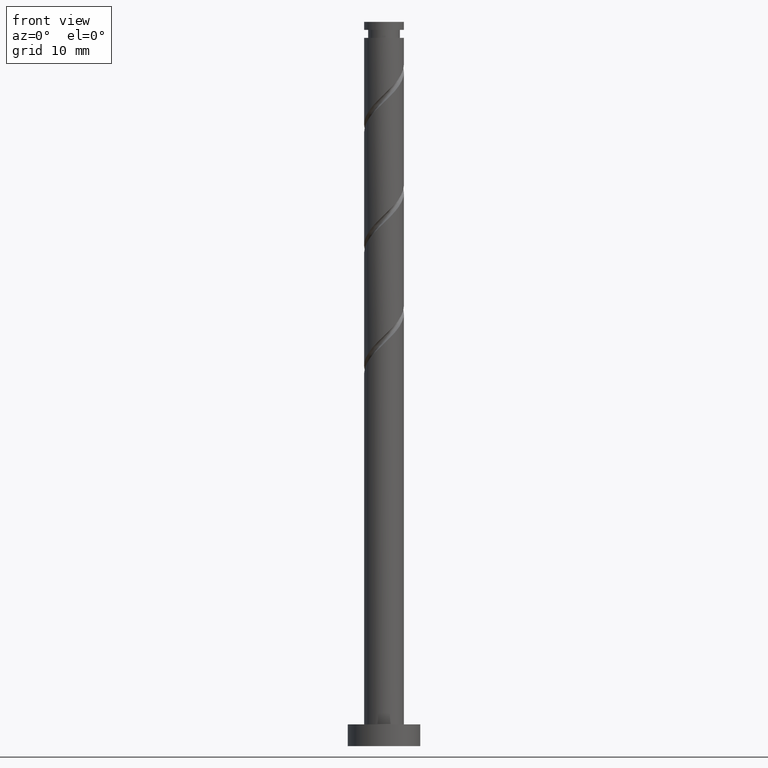
[diagram: clean part render]
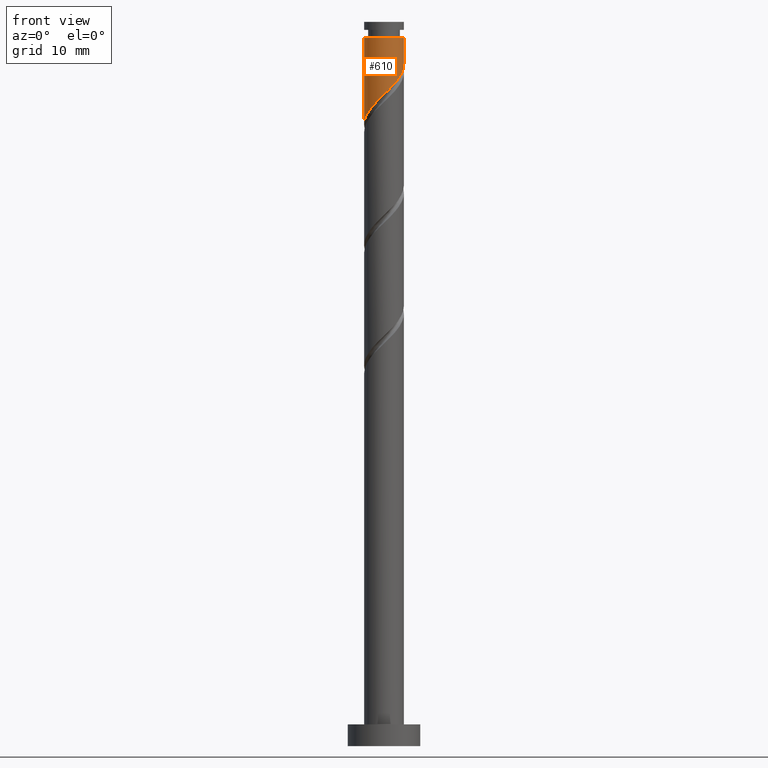
[diagram: same view with one face highlighted and labeled with its STEP entity id]
A machine part, front view. The second image highlights one B-rep face of the part: STEP entity #610.
In plain terms, the highlighted cylindrical surface (edge-blend (fillet) strip) has radius 2.75 mm, axis along (-0, -0, -1).
Its self-contained STEP definition (entity closure, byte-faithful):
#104 = VERTEX_POINT ( 'NONE', #1293 ) ;
#156 = CARTESIAN_POINT ( 'NONE',  ( -2.607560008403383200, -0.8735735816606121640, 86.67569652426269045 ) ) ;
#186 = DIRECTION ( 'NONE',  ( -0.000000000000000000, -0.000000000000000000, -1.000000000000000000 ) ) ;
#188 = ORIENTED_EDGE ( 'NONE', *, *, #328, .T. ) ;
#218 = DIRECTION ( 'NONE',  ( -0.000000000000000000, -0.000000000000000000, -1.000000000000000000 ) ) ;
#231 = EDGE_CURVE ( 'NONE', #1215, #430, #1229, .T. ) ;
#235 = CARTESIAN_POINT ( 'NONE',  ( 2.381483538923157894, -1.458136956886805891, 92.69421504278122370 ) ) ;
#242 = CARTESIAN_POINT ( 'NONE',  ( 2.750000000000000000, 3.367778697655220519E-16, 100.0000000000000000 ) ) ;
#259 = CARTESIAN_POINT ( 'NONE',  ( 2.749999999999999556, 8.701948013565627518E-16, 94.15099585702922980 ) ) ;
#328 = EDGE_CURVE ( 'NONE', #1250, #1215, #662, .T. ) ;
#414 = VECTOR ( 'NONE', #218, 1000.000000000000000 ) ;
#430 = VERTEX_POINT ( 'NONE', #693 ) ;
#431 = DIRECTION ( 'NONE',  ( -1.000000000000000000, 0.000000000000000000, 0.000000000000000000 ) ) ;
#439 = EDGE_CURVE ( 'NONE', #104, #430, #886, .T. ) ;
#461 = CARTESIAN_POINT ( 'NONE',  ( -2.750000000000000000, 0.000000000000000000, 100.0000000000000000 ) ) ;
#472 = CARTESIAN_POINT ( 'NONE',  ( 2.060316917994740926, -1.821426418339388009, 92.23125207981826179 ) ) ;
#476 = VECTOR ( 'NONE', #922, 1000.000000000000000 ) ;
#497 = CARTESIAN_POINT ( 'NONE',  ( 2.559029128977621248, -1.006911077029167156, 93.15717800574419982 ) ) ;
#521 = CARTESIAN_POINT ( 'NONE',  ( -2.151525136548019468, -1.712728696204400602, 87.60162245018861427 ) ) ;
#586 = CARTESIAN_POINT ( 'NONE',  ( 2.749999999999999556, -0.03547960441305603174, 94.11697848309688652 ) ) ;
#610 = ADVANCED_FACE ( 'NONE', ( #1456 ), #1015, .T. ) ;
#639 = ORIENTED_EDGE ( 'NONE', *, *, #439, .F. ) ;
#662 = CIRCLE ( 'NONE', #1444, 2.750000000000000000 ) ;
#670 = CARTESIAN_POINT ( 'NONE',  ( -0.07204187739932858825, -2.791493721845325293, 89.91643726500346645 ) ) ;
#693 = CARTESIAN_POINT ( 'NONE',  ( -2.749999999999999556, -1.852431851814829013E-15, 85.81766252369592962 ) ) ;
#704 = CARTESIAN_POINT ( 'NONE',  ( 2.749084659758180393, -0.07094739940441381620, 94.08310393167010943 ) ) ;
#722 = CARTESIAN_POINT ( 'NONE',  ( -2.749999999999999556, -1.852431851814829013E-15, 85.81766252369592962 ) ) ;
#753 = ORIENTED_EDGE ( 'NONE', *, *, #910, .F. ) ;
#787 = CARTESIAN_POINT ( 'NONE',  ( 0.8870498622585304416, -2.647785824621811557, 90.84236319092933343 ) ) ;
#795 = CARTESIAN_POINT ( 'NONE',  ( -1.022444303417954892, -2.598506278154674831, 88.99051133907750000 ) ) ;
#799 = EDGE_LOOP ( 'NONE', ( #753, #188, #1475, #639 ) ) ;
#873 = CARTESIAN_POINT ( 'NONE',  ( 0.000000000000000000, 0.000000000000000000, 100.0000000000000000 ) ) ;
#886 =( BOUNDED_CURVE ( )  B_SPLINE_CURVE ( 2, ( #259, #586, #704, #1035, #497, #235, #472, #940, #1403, #787, #1251, #670, #1029, #795, #1310, #1205, #521, #1426, #156, #980, #722 ),
 .UNSPECIFIED., .F., .T. ) 
 B_SPLINE_CURVE_WITH_KNOTS ( ( 3, 2, 2, 2, 2, 2, 2, 2, 2, 2, 3 ),
 ( 0.3045248053855290071, 0.3055555555555555802, 0.3194444444444444198, 0.3333333333333333148, 0.3472222222222222099, 0.3611111111111111049, 0.3750000000000000000, 0.3888888888888888951, 0.4027777777777777901, 0.4166666666666666852, 0.4295248053855290071 ),
 .UNSPECIFIED. ) 
 CURVE ( )  GEOMETRIC_REPRESENTATION_ITEM ( )  RATIONAL_B_SPLINE_CURVE ( ( 0.9071930855141213668, 0.9080659294509689783, 0.9090909090909090606, 0.8952797754656436346, 0.9090909090909090606, 0.8952797754656436346, 0.9090909090909090606, 0.8952797754656436346, 0.9090909090909090606, 0.8952797754656436346, 0.9090909090909090606, 0.8952797754656436346, 0.9090909090909090606, 0.8952797754656436346, 0.9090909090909090606, 0.8952797754656436346, 0.9090909090909090606, 0.8952797754656436346, 0.9090909090909090606, 0.8963047551055837170, 0.9071930855141213668 ) ) 
 REPRESENTATION_ITEM ( '' )  );
#890 = CARTESIAN_POINT ( 'NONE',  ( 2.750000000000000000, 3.367778697655220519E-16, 97.78680763537381893 ) ) ;
#910 = EDGE_CURVE ( 'NONE', #1250, #104, #1262, .T. ) ;
#922 = DIRECTION ( 'NONE',  ( -0.000000000000000000, -0.000000000000000000, -1.000000000000000000 ) ) ;
#940 = CARTESIAN_POINT ( 'NONE',  ( 1.739150297066323514, -2.184715879791970572, 91.76828911685528567 ) ) ;
#980 = CARTESIAN_POINT ( 'NONE',  ( -2.749999999999999112, -0.4483995225062577528, 86.24758203606153018 ) ) ;
#987 = DIRECTION ( 'NONE',  ( -1.000000000000000000, 0.000000000000000000, 0.000000000000000000 ) ) ;
#995 = CARTESIAN_POINT ( 'NONE',  ( 0.000000000000000000, 0.000000000000000000, 97.78680763537381893 ) ) ;
#1014 = CARTESIAN_POINT ( 'NONE',  ( -2.750000000000000000, 0.000000000000000000, 97.78680763537381893 ) ) ;
#1015 = CYLINDRICAL_SURFACE ( 'NONE', #1446, 2.750000000000000000 ) ;
#1029 = CARTESIAN_POINT ( 'NONE',  ( -0.5472430904086409420, -2.695000000000000728, 89.45347430204044770 ) ) ;
#1035 = CARTESIAN_POINT ( 'NONE',  ( 2.736574719032083269, -0.5556851971715309757, 93.62014096870713331 ) ) ;
#1205 = CARTESIAN_POINT ( 'NONE',  ( -1.849524856773550496, -2.092100627450280914, 88.06458541315157618 ) ) ;
#1215 = VERTEX_POINT ( 'NONE', #1014 ) ;
#1229 = LINE ( 'NONE', #461, #414 ) ;
#1250 = VERTEX_POINT ( 'NONE', #890 ) ;
#1251 = CARTESIAN_POINT ( 'NONE',  ( 0.4075039924296015026, -2.719639773233567759, 90.37940022796641415 ) ) ;
#1262 = LINE ( 'NONE', #242, #476 ) ;
#1293 = CARTESIAN_POINT ( 'NONE',  ( 2.749999999999999556, 8.701948013565627518E-16, 94.15099585702922980 ) ) ;
#1310 = CARTESIAN_POINT ( 'NONE',  ( -1.435984580095752916, -2.345303452802476762, 88.52754837611455230 ) ) ;
#1403 = CARTESIAN_POINT ( 'NONE',  ( 1.313100079662427699, -2.416250852206890176, 91.30532615389235218 ) ) ;
#1426 = CARTESIAN_POINT ( 'NONE',  ( -2.453525416322486219, -1.333356764958521179, 87.13865948722565236 ) ) ;
#1444 = AXIS2_PLACEMENT_3D ( 'NONE', #995, #1454, #431 ) ;
#1446 = AXIS2_PLACEMENT_3D ( 'NONE', #873, #186, #987 ) ;
#1454 = DIRECTION ( 'NONE',  ( -0.000000000000000000, -0.000000000000000000, -1.000000000000000000 ) ) ;
#1456 = FACE_OUTER_BOUND ( 'NONE', #799, .T. ) ;
#1475 = ORIENTED_EDGE ( 'NONE', *, *, #231, .T. ) ;